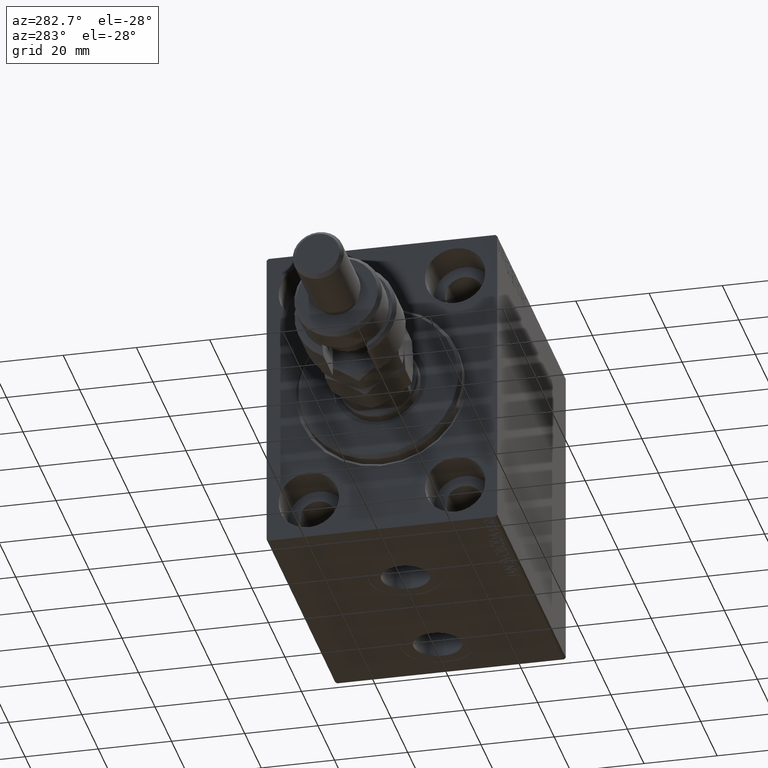
[diagram: clean part render]
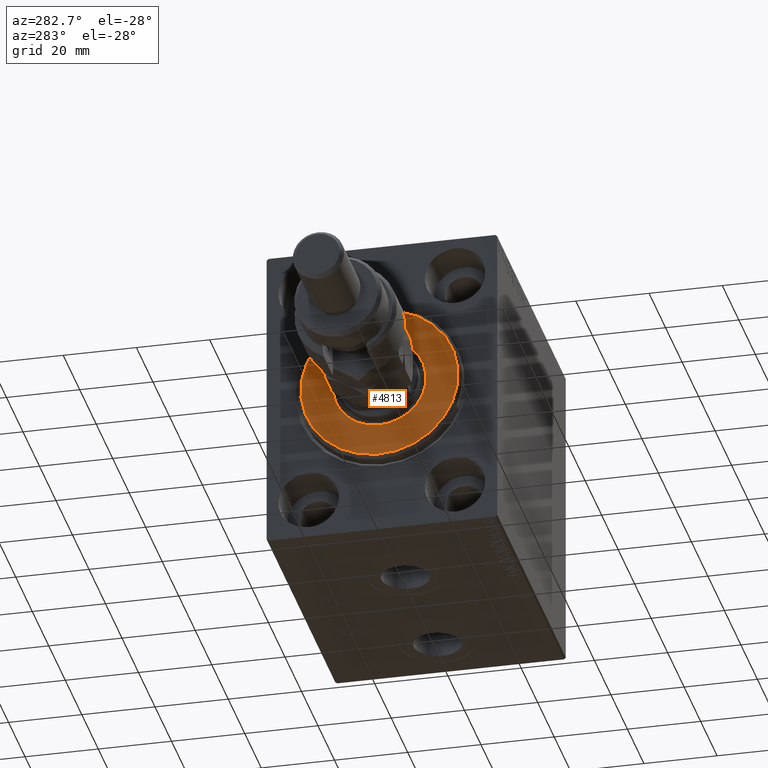
[diagram: same view with one face highlighted and labeled with its STEP entity id]
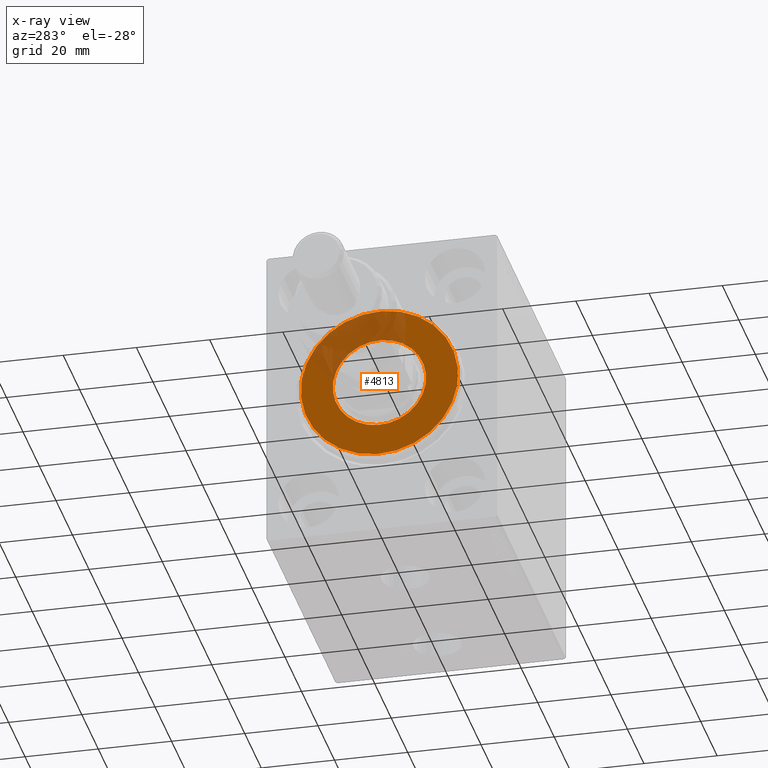
[diagram: x-ray of the same camera — body ghosted, the highlighted face saturated]
A machine part, auxiliary view. The second image highlights one B-rep face of the part: STEP entity #4813.
The next image is the same camera in x-ray: the body ghosted, the highlighted face saturated — about 26% of this face is hidden behind the body in this view.
In plain terms, the highlighted planar face has unit normal (-1, 0, 0).
Its self-contained STEP definition (entity closure, byte-faithful):
#604 = CIRCLE ( 'NONE', #4472, 21.50000000000000355 ) ;
#1099 = CIRCLE ( 'NONE', #8848, 12.75000000000000000 ) ;
#1440 = CARTESIAN_POINT ( 'NONE',  ( 3.000000000000000000, 0.000000000000000000, 0.000000000000000000 ) ) ;
#1449 = PLANE ( 'NONE',  #45162 ) ;
#1922 = AXIS2_PLACEMENT_3D ( 'NONE', #45375, #15168, #18556 ) ;
#4472 = AXIS2_PLACEMENT_3D ( 'NONE', #14778, #7527, #29543 ) ;
#4813 = ADVANCED_FACE ( 'NONE', ( #45488, #23282 ), #1449, .T. ) ;
#5447 = EDGE_CURVE ( 'NONE', #7009, #27653, #37491, .T. ) ;
#7009 = VERTEX_POINT ( 'NONE', #9016 ) ;
#7240 = CARTESIAN_POINT ( 'NONE',  ( 3.000000000000000000, 1.561424668912874914E-15, -12.75000000000000000 ) ) ;
#7473 = CARTESIAN_POINT ( 'NONE',  ( 3.000000000000000000, 0.000000000000000000, 0.000000000000000000 ) ) ;
#7527 = DIRECTION ( 'NONE',  ( 1.000000000000000000, -0.000000000000000000, 0.000000000000000000 ) ) ;
#8848 = AXIS2_PLACEMENT_3D ( 'NONE', #7473, #40371, #18598 ) ;
#9016 = CARTESIAN_POINT ( 'NONE',  ( 3.000000000000000000, 2.694222958124177598E-15, -21.50000000000000355 ) ) ;
#9897 = ORIENTED_EDGE ( 'NONE', *, *, #45644, .T. ) ;
#11853 = VERTEX_POINT ( 'NONE', #7240 ) ;
#14778 = CARTESIAN_POINT ( 'NONE',  ( 3.000000000000000000, 0.000000000000000000, 0.000000000000000000 ) ) ;
#15168 = DIRECTION ( 'NONE',  ( 1.000000000000000000, -0.000000000000000000, 0.000000000000000000 ) ) ;
#18556 = DIRECTION ( 'NONE',  ( 0.000000000000000000, 0.000000000000000000, -1.000000000000000000 ) ) ;
#18598 = DIRECTION ( 'NONE',  ( 0.000000000000000000, 0.000000000000000000, -1.000000000000000000 ) ) ;
#18917 = CARTESIAN_POINT ( 'NONE',  ( 3.000000000000000000, 0.000000000000000000, 0.000000000000000000 ) ) ;
#20727 = EDGE_LOOP ( 'NONE', ( #33659, #9897 ) ) ;
#21682 = EDGE_LOOP ( 'NONE', ( #33055, #42893 ) ) ;
#23282 = FACE_BOUND ( 'NONE', #20727, .T. ) ;
#27653 = VERTEX_POINT ( 'NONE', #38438 ) ;
#29543 = DIRECTION ( 'NONE',  ( 0.000000000000000000, 0.000000000000000000, -1.000000000000000000 ) ) ;
#30745 = CARTESIAN_POINT ( 'NONE',  ( 3.000000000000000000, 0.000000000000000000, 12.75000000000000000 ) ) ;
#30999 = DIRECTION ( 'NONE',  ( 1.000000000000000000, -0.000000000000000000, 0.000000000000000000 ) ) ;
#33055 = ORIENTED_EDGE ( 'NONE', *, *, #43243, .T. ) ;
#33659 = ORIENTED_EDGE ( 'NONE', *, *, #45942, .T. ) ;
#34306 = AXIS2_PLACEMENT_3D ( 'NONE', #1440, #34378, #41388 ) ;
#34344 = VERTEX_POINT ( 'NONE', #30745 ) ;
#34378 = DIRECTION ( 'NONE',  ( -1.000000000000000000, 0.000000000000000000, -0.000000000000000000 ) ) ;
#36616 = CIRCLE ( 'NONE', #34306, 12.75000000000000000 ) ;
#37491 = CIRCLE ( 'NONE', #1922, 21.50000000000000355 ) ;
#38438 = CARTESIAN_POINT ( 'NONE',  ( 3.000000000000000000, 0.000000000000000000, 21.50000000000000355 ) ) ;
#40371 = DIRECTION ( 'NONE',  ( -1.000000000000000000, 0.000000000000000000, -0.000000000000000000 ) ) ;
#41388 = DIRECTION ( 'NONE',  ( 0.000000000000000000, 0.000000000000000000, -1.000000000000000000 ) ) ;
#42893 = ORIENTED_EDGE ( 'NONE', *, *, #5447, .T. ) ;
#43243 = EDGE_CURVE ( 'NONE', #27653, #7009, #604, .T. ) ;
#45162 = AXIS2_PLACEMENT_3D ( 'NONE', #18917, #30999, #45721 ) ;
#45375 = CARTESIAN_POINT ( 'NONE',  ( 3.000000000000000000, 0.000000000000000000, 0.000000000000000000 ) ) ;
#45488 = FACE_OUTER_BOUND ( 'NONE', #21682, .T. ) ;
#45644 = EDGE_CURVE ( 'NONE', #11853, #34344, #36616, .T. ) ;
#45721 = DIRECTION ( 'NONE',  ( 0.000000000000000000, 0.000000000000000000, -1.000000000000000000 ) ) ;
#45942 = EDGE_CURVE ( 'NONE', #34344, #11853, #1099, .T. ) ;